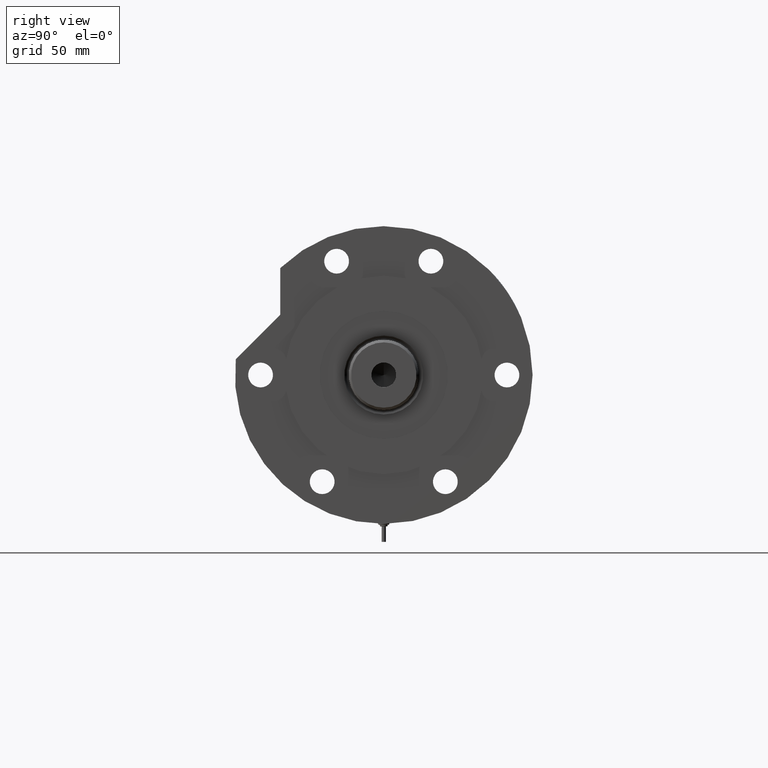
[diagram: clean part render]
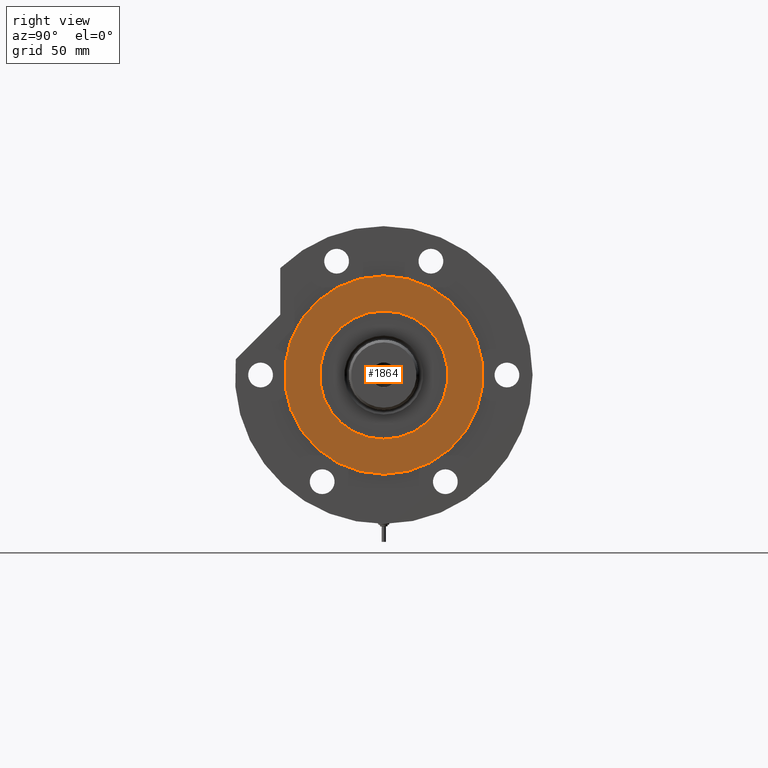
[diagram: same view with one face highlighted and labeled with its STEP entity id]
A machine part, right view. The second image highlights one B-rep face of the part: STEP entity #1864.
In plain terms, the highlighted planar face has unit normal (1, 0, -0).
Its self-contained STEP definition (entity closure, byte-faithful):
#88 = FACE_BOUND ( 'NONE', #4361, .T. ) ;
#107 = EDGE_CURVE ( 'NONE', #6213, #7361, #4448, .T. ) ;
#124 = DIRECTION ( 'NONE',  ( 0.000000000000000000, 0.000000000000000000, 1.000000000000000000 ) ) ;
#270 = ORIENTED_EDGE ( 'NONE', *, *, #107, .T. ) ;
#323 = CARTESIAN_POINT ( 'NONE',  ( 0.000000000000000000, 0.000000000000000000, 33.00000000000000000 ) ) ;
#581 = CARTESIAN_POINT ( 'NONE',  ( 58.00000000000000000, 7.102951435054648059E-15, 33.00000000000000000 ) ) ;
#738 = CARTESIAN_POINT ( 'NONE',  ( 0.000000000000000000, 0.000000000000000000, 33.00000000000000000 ) ) ;
#982 = VERTEX_POINT ( 'NONE', #5614 ) ;
#1362 = CARTESIAN_POINT ( 'NONE',  ( 37.50000000000000711, 0.000000000000000000, 33.00000000000000000 ) ) ;
#1737 = CIRCLE ( 'NONE', #3769, 37.50000000000000711 ) ;
#1864 = ADVANCED_FACE ( 'NONE', ( #88, #4708 ), #1911, .T. ) ;
#1911 = PLANE ( 'NONE',  #6748 ) ;
#2094 = DIRECTION ( 'NONE',  ( 1.000000000000000000, 0.000000000000000000, 0.000000000000000000 ) ) ;
#2169 = CIRCLE ( 'NONE', #7489, 37.50000000000000711 ) ;
#2183 = EDGE_CURVE ( 'NONE', #5366, #982, #2169, .T. ) ;
#2349 = DIRECTION ( 'NONE',  ( 0.000000000000000000, 0.000000000000000000, 1.000000000000000000 ) ) ;
#2673 = DIRECTION ( 'NONE',  ( 0.000000000000000000, 0.000000000000000000, 1.000000000000000000 ) ) ;
#3145 = DIRECTION ( 'NONE',  ( 0.000000000000000000, 0.000000000000000000, 1.000000000000000000 ) ) ;
#3263 = DIRECTION ( 'NONE',  ( 1.000000000000000000, 0.000000000000000000, 0.000000000000000000 ) ) ;
#3769 = AXIS2_PLACEMENT_3D ( 'NONE', #738, #2349, #4745 ) ;
#4014 = CIRCLE ( 'NONE', #6814, 58.00000000000000000 ) ;
#4139 = CARTESIAN_POINT ( 'NONE',  ( 0.000000000000000000, 0.000000000000000000, 33.00000000000000000 ) ) ;
#4151 = EDGE_CURVE ( 'NONE', #7361, #6213, #4014, .T. ) ;
#4201 = AXIS2_PLACEMENT_3D ( 'NONE', #4139, #4644, #6471 ) ;
#4293 = EDGE_CURVE ( 'NONE', #982, #5366, #1737, .T. ) ;
#4361 = EDGE_LOOP ( 'NONE', ( #5628, #4888 ) ) ;
#4448 = CIRCLE ( 'NONE', #4201, 58.00000000000000000 ) ;
#4561 = EDGE_LOOP ( 'NONE', ( #270, #5587 ) ) ;
#4644 = DIRECTION ( 'NONE',  ( 0.000000000000000000, 0.000000000000000000, 1.000000000000000000 ) ) ;
#4708 = FACE_OUTER_BOUND ( 'NONE', #4561, .T. ) ;
#4745 = DIRECTION ( 'NONE',  ( 1.000000000000000000, 0.000000000000000000, 0.000000000000000000 ) ) ;
#4888 = ORIENTED_EDGE ( 'NONE', *, *, #4293, .F. ) ;
#5310 = DIRECTION ( 'NONE',  ( 1.000000000000000000, 0.000000000000000000, -0.000000000000000000 ) ) ;
#5366 = VERTEX_POINT ( 'NONE', #1362 ) ;
#5587 = ORIENTED_EDGE ( 'NONE', *, *, #4151, .T. ) ;
#5614 = CARTESIAN_POINT ( 'NONE',  ( -37.50000000000000711, 4.592425496802575156E-15, 33.00000000000000000 ) ) ;
#5628 = ORIENTED_EDGE ( 'NONE', *, *, #2183, .F. ) ;
#5898 = CARTESIAN_POINT ( 'NONE',  ( -58.00000000000000000, 0.000000000000000000, 33.00000000000000000 ) ) ;
#5930 = CARTESIAN_POINT ( 'NONE',  ( 0.000000000000000000, 0.000000000000000000, 33.00000000000000000 ) ) ;
#6079 = CARTESIAN_POINT ( 'NONE',  ( 0.000000000000000000, 0.000000000000000000, 33.00000000000000000 ) ) ;
#6213 = VERTEX_POINT ( 'NONE', #5898 ) ;
#6471 = DIRECTION ( 'NONE',  ( 1.000000000000000000, 0.000000000000000000, 0.000000000000000000 ) ) ;
#6748 = AXIS2_PLACEMENT_3D ( 'NONE', #5930, #124, #5310 ) ;
#6814 = AXIS2_PLACEMENT_3D ( 'NONE', #6079, #3145, #2094 ) ;
#7361 = VERTEX_POINT ( 'NONE', #581 ) ;
#7489 = AXIS2_PLACEMENT_3D ( 'NONE', #323, #2673, #3263 ) ;